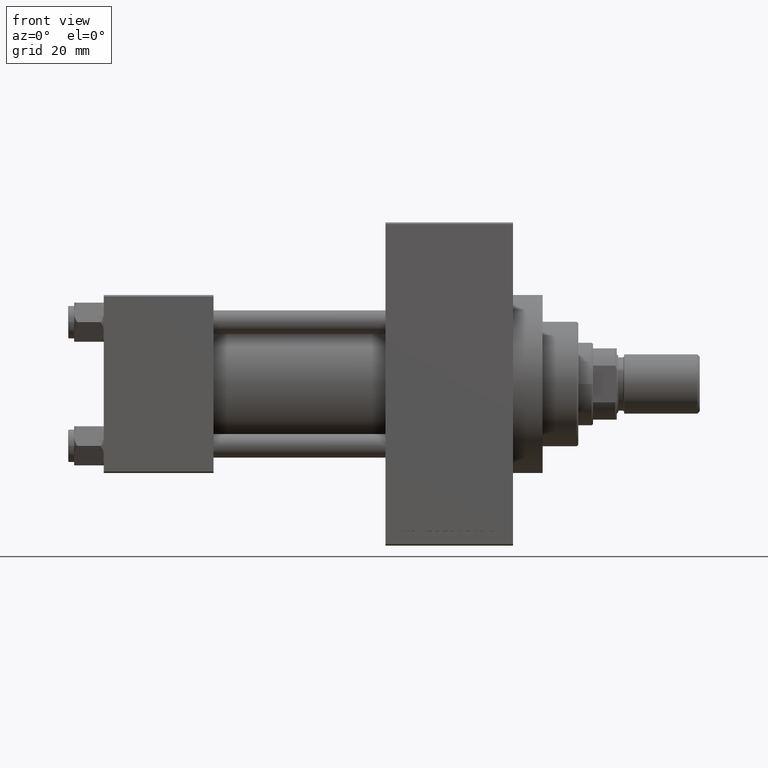
[diagram: clean part render]
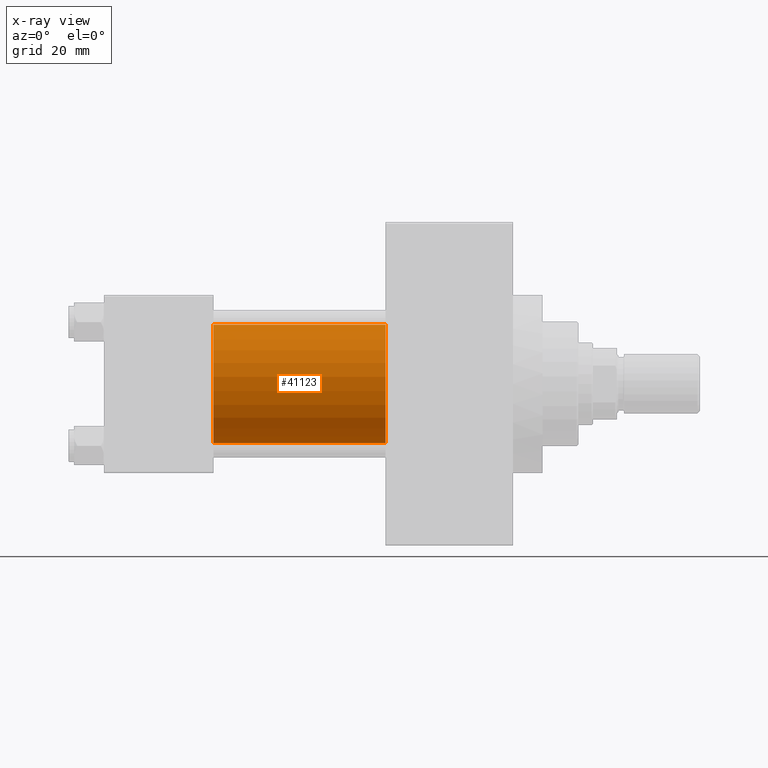
[diagram: x-ray — body ghosted, one internal face saturated and labeled with its STEP entity id]
A machine part, front view, then the same camera in x-ray: the body is ghosted and one INTERNAL B-rep face — a face not visible from any outside direction — is saturated and labeled: STEP entity #41123.
In plain terms, the highlighted cylindrical surface (partial cylindrical patch) has radius 20 mm, axis along (-1, -0, -0).
Its self-contained STEP definition (entity closure, byte-faithful):
#595 = LINE ( 'NONE', #15321, #42430 ) ;
#1091 = DIRECTION ( 'NONE',  ( 0.000000000000000000, 0.000000000000000000, -1.000000000000000000 ) ) ;
#1302 = EDGE_CURVE ( 'NONE', #46722, #5264, #22451, .T. ) ;
#2975 = ORIENTED_EDGE ( 'NONE', *, *, #29821, .T. ) ;
#3508 = EDGE_LOOP ( 'NONE', ( #6475, #2975, #32195, #45809 ) ) ;
#4050 = EDGE_CURVE ( 'NONE', #41028, #32966, #34751, .T. ) ;
#5249 = DIRECTION ( 'NONE',  ( 1.000000000000000000, 0.000000000000000000, 0.000000000000000000 ) ) ;
#5264 = VERTEX_POINT ( 'NONE', #34121 ) ;
#6475 = ORIENTED_EDGE ( 'NONE', *, *, #1302, .T. ) ;
#6569 = CARTESIAN_POINT ( 'NONE',  ( 37.00000000000000000, -1.527916156705046464E-16, -20.00000000000000000 ) ) ;
#13179 = AXIS2_PLACEMENT_3D ( 'NONE', #26213, #30315, #1091 ) ;
#15321 = CARTESIAN_POINT ( 'NONE',  ( 95.00000000000000000, -1.527916156705046464E-16, -20.00000000000000000 ) ) ;
#16126 = DIRECTION ( 'NONE',  ( 0.000000000000000000, 0.000000000000000000, -1.000000000000000000 ) ) ;
#17997 = AXIS2_PLACEMENT_3D ( 'NONE', #22406, #19023, #26276 ) ;
#18735 = EDGE_CURVE ( 'NONE', #46722, #41028, #29151, .T. ) ;
#19023 = DIRECTION ( 'NONE',  ( -1.000000000000000000, -0.000000000000000000, -0.000000000000000000 ) ) ;
#22406 = CARTESIAN_POINT ( 'NONE',  ( 95.00000000000000000, -2.602085213965210642E-15, 0.000000000000000000 ) ) ;
#22451 = CIRCLE ( 'NONE', #27082, 20.00000000000000000 ) ;
#26213 = CARTESIAN_POINT ( 'NONE',  ( 37.00000000000000000, -2.602085213965210642E-15, 0.000000000000000000 ) ) ;
#26276 = DIRECTION ( 'NONE',  ( 0.000000000000000000, 0.000000000000000000, 1.000000000000000000 ) ) ;
#27082 = AXIS2_PLACEMENT_3D ( 'NONE', #30851, #5249, #16126 ) ;
#29151 = LINE ( 'NONE', #36141, #32925 ) ;
#29674 = CYLINDRICAL_SURFACE ( 'NONE', #17997, 20.00000000000000000 ) ;
#29821 = EDGE_CURVE ( 'NONE', #5264, #32966, #595, .T. ) ;
#30315 = DIRECTION ( 'NONE',  ( 1.000000000000000000, 0.000000000000000000, 0.000000000000000000 ) ) ;
#30851 = CARTESIAN_POINT ( 'NONE',  ( 95.00000000000000000, -2.602085213965210642E-15, 0.000000000000000000 ) ) ;
#32195 = ORIENTED_EDGE ( 'NONE', *, *, #4050, .F. ) ;
#32714 = DIRECTION ( 'NONE',  ( -1.000000000000000000, -0.000000000000000000, -0.000000000000000000 ) ) ;
#32925 = VECTOR ( 'NONE', #35679, 1000.000000000000000 ) ;
#32966 = VERTEX_POINT ( 'NONE', #6569 ) ;
#34121 = CARTESIAN_POINT ( 'NONE',  ( 95.00000000000000000, -1.527916156705046464E-16, -20.00000000000000000 ) ) ;
#34751 = CIRCLE ( 'NONE', #13179, 20.00000000000000000 ) ;
#35448 = CARTESIAN_POINT ( 'NONE',  ( 95.00000000000000000, -2.602085213965210642E-15, 20.00000000000000000 ) ) ;
#35679 = DIRECTION ( 'NONE',  ( -1.000000000000000000, -0.000000000000000000, -0.000000000000000000 ) ) ;
#36141 = CARTESIAN_POINT ( 'NONE',  ( 95.00000000000000000, -2.602085213965210642E-15, 20.00000000000000000 ) ) ;
#36182 = CARTESIAN_POINT ( 'NONE',  ( 37.00000000000000000, -2.602085213965210642E-15, 20.00000000000000000 ) ) ;
#41028 = VERTEX_POINT ( 'NONE', #36182 ) ;
#41123 = ADVANCED_FACE ( 'NONE', ( #47746 ), #29674, .F. ) ;
#42430 = VECTOR ( 'NONE', #32714, 1000.000000000000000 ) ;
#45809 = ORIENTED_EDGE ( 'NONE', *, *, #18735, .F. ) ;
#46722 = VERTEX_POINT ( 'NONE', #35448 ) ;
#47746 = FACE_OUTER_BOUND ( 'NONE', #3508, .T. ) ;